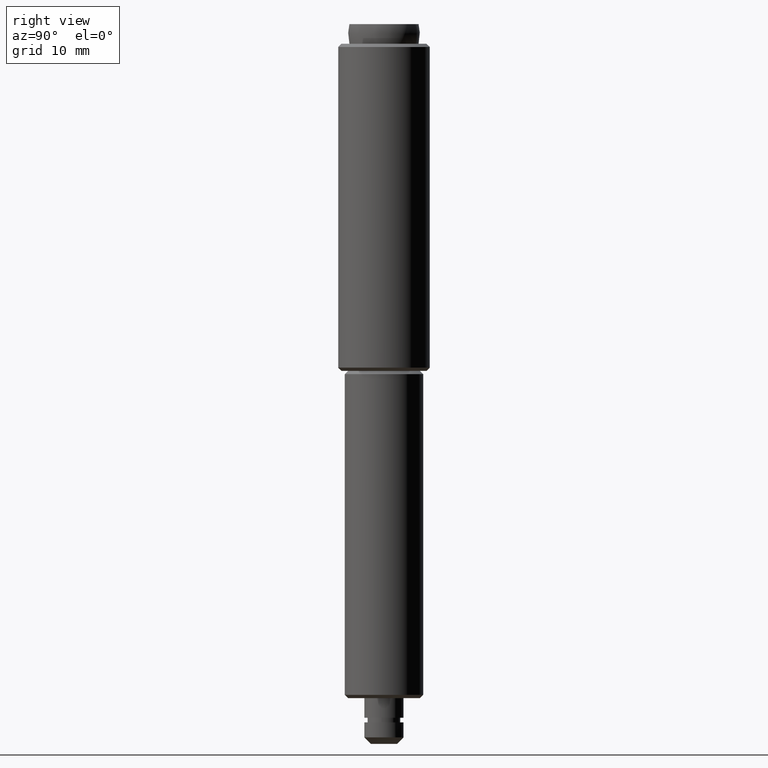
[diagram: clean part render]
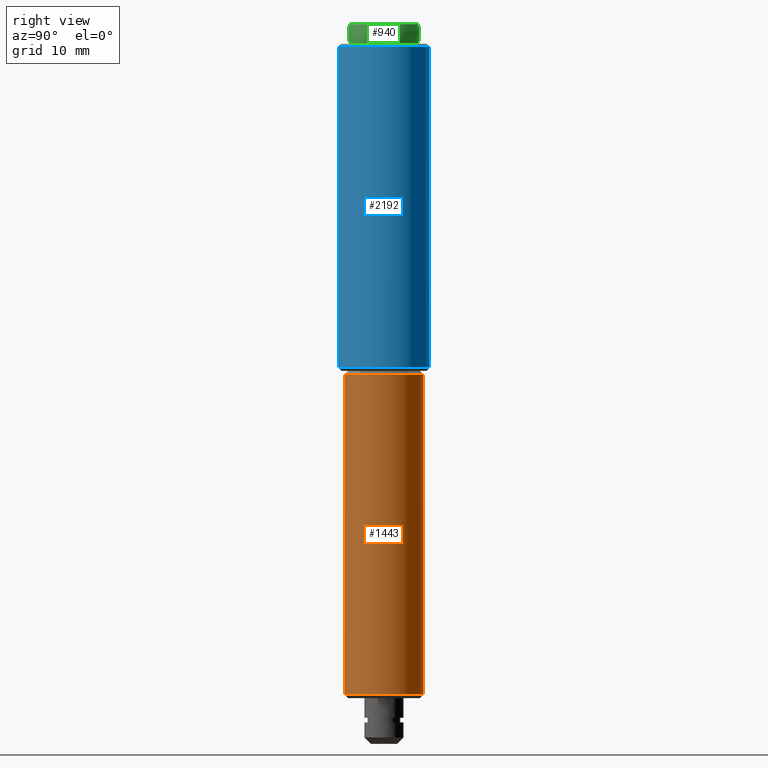
[diagram: same view with three faces highlighted in distinct colors, each labeled with its STEP entity id]
A machine part, right view with three faces highlighted in distinct colors.
Their STEP definitions:

[orange] entity #1443 — the highlighted face is a freeform B-spline surface patch.
#1016=CARTESIAN_POINT('',(0.744768012502784,5.953597282950256,56.500000000000000));
#1017=VERTEX_POINT('',#1016);
#1074=CARTESIAN_POINT('',(-0.052359213121789,-5.999771538383760,56.500000000000107));
#1075=VERTEX_POINT('',#1074);
#1081=CARTESIAN_POINT('',(6.0,0.0,56.500000000000000));
#1082=VERTEX_POINT('',#1081);
#1083=CARTESIAN_POINT('',(6.0,0.0,56.500000000000000));
#1084=CARTESIAN_POINT('',(6.0,-6.0,56.500000000000000));
#1085=CARTESIAN_POINT('',(0.0,-6.0,56.500000000000000));
#1086=CARTESIAN_POINT('',(-0.026180105187306,-6.0,56.500000000000000));
#1087=CARTESIAN_POINT('',(-0.052359213121789,-5.999771538383760,56.500000000000121));
#1095=(BOUNDED_CURVE()B_SPLINE_CURVE(2,(#1083,#1084,#1085,#1086,#1087),.UNSPECIFIED.,.F.,.U.)B_SPLINE_CURVE_WITH_KNOTS((3,2,3),(0.500000000000000,0.750000000000000,0.751539894350434),.UNSPECIFIED.)CURVE()GEOMETRIC_REPRESENTATION_ITEM()RATIONAL_B_SPLINE_CURVE((1.0,0.707106781186548,1.0,0.998195901548275,0.996414028064657))REPRESENTATION_ITEM(''));
#1096=EDGE_CURVE('',#1082,#1075,#1095,.T.);
#1098=CARTESIAN_POINT('',(0.744768012502784,5.953597282950256,56.500000000000000));
#1099=CARTESIAN_POINT('',(6.000000000000002,5.296191600858685,56.500000000000007));
#1100=CARTESIAN_POINT('',(6.0,0.0,56.500000000000000));
#1108=(BOUNDED_CURVE()B_SPLINE_CURVE(2,(#1098,#1099,#1100),.UNSPECIFIED.,.F.,.U.)B_SPLINE_CURVE_WITH_KNOTS((3,3),(0.271473928972050,0.500000000000000),.UNSPECIFIED.)CURVE()GEOMETRIC_REPRESENTATION_ITEM()RATIONAL_B_SPLINE_CURVE((0.954005430272101,0.732265053895328,1.0))REPRESENTATION_ITEM(''));
#1109=EDGE_CURVE('',#1017,#1082,#1108,.T.);
#1299=CARTESIAN_POINT('',(0.744763078572230,5.953597900158432,7.500007999999998));
#1300=VERTEX_POINT('',#1299);
#1316=CARTESIAN_POINT('',(6.0,0.0,7.500008000000000));
#1317=VERTEX_POINT('',#1316);
#1318=CARTESIAN_POINT('',(6.0,0.0,7.500008000000000));
#1319=CARTESIAN_POINT('',(6.000000000000001,5.296196024208348,7.500008000000002));
#1320=CARTESIAN_POINT('',(0.744763078572230,5.953597900158433,7.500007999999998));
#1328=(BOUNDED_CURVE()B_SPLINE_CURVE(2,(#1318,#1319,#1320),.UNSPECIFIED.,.F.,.U.)B_SPLINE_CURVE_WITH_KNOTS((3,3),(0.500000000000000,0.728526210790736),.UNSPECIFIED.)CURVE()GEOMETRIC_REPRESENTATION_ITEM()RATIONAL_B_SPLINE_CURVE((1.0,0.732264890153040,0.954005701497817))REPRESENTATION_ITEM(''));
#1329=EDGE_CURVE('',#1317,#1300,#1328,.T.);
#1331=CARTESIAN_POINT('',(-0.052359213232947,-5.999771538382909,7.500008000000000));
#1332=VERTEX_POINT('',#1331);
#1333=CARTESIAN_POINT('',(-0.052359213232947,-5.999771538382909,7.500008000000000));
#1334=CARTESIAN_POINT('',(-0.026180105166927,-6.0,7.500008000000001));
#1335=CARTESIAN_POINT('',(0.0,-6.0,7.500008000000000));
#1336=CARTESIAN_POINT('',(6.0,-6.0,7.500008000000002));
#1337=CARTESIAN_POINT('',(6.0,0.0,7.500008000000000));
#1345=(BOUNDED_CURVE()B_SPLINE_CURVE(2,(#1333,#1334,#1335,#1336,#1337),.UNSPECIFIED.,.F.,.U.)B_SPLINE_CURVE_WITH_KNOTS((3,2,3),(0.248460105650762,0.250000000000000,0.500000000000000),.UNSPECIFIED.)CURVE()GEOMETRIC_REPRESENTATION_ITEM()RATIONAL_B_SPLINE_CURVE((0.996414028067426,0.998195901549676,1.0,0.707106781186548,1.0))REPRESENTATION_ITEM(''));
#1346=EDGE_CURVE('',#1332,#1317,#1345,.T.);
#1409=CARTESIAN_POINT('',(0.744768012478976,5.953597282953231,57.724999800000006));
#1410=CARTESIAN_POINT('',(6.046396983014668,5.290387548799326,57.724999800000013));
#1411=CARTESIAN_POINT('',(5.999771538385026,-0.052359212990243,57.724999800000013));
#1412=CARTESIAN_POINT('',(5.947412325394783,-6.052130751375269,57.724999800000006));
#1413=CARTESIAN_POINT('',(-0.052359212990243,-5.999771538385026,57.724999800000013));
#1414=CARTESIAN_POINT('',(0.744768012478976,5.953597282953231,6.244383204999997));
#1415=CARTESIAN_POINT('',(6.046396983014668,5.290387548799326,6.244383204999998));
#1416=CARTESIAN_POINT('',(5.999771538385026,-0.052359212990243,6.244383204999998));
#1417=CARTESIAN_POINT('',(5.947412325394783,-6.052130751375269,6.244383204999998));
#1418=CARTESIAN_POINT('',(-0.052359212990243,-5.999771538385026,6.244383204999998));
#1426=(BOUNDED_SURFACE()B_SPLINE_SURFACE(2,1,((#1409,#1414),(#1410,#1415),(#1411,#1416),(#1412,#1417),(#1413,#1418)),.UNSPECIFIED.,.F.,.F.,.U.)B_SPLINE_SURFACE_WITH_KNOTS((3,2,3),(2,2),(0.0,9.145835457197935,19.086960954152211),(0.0,51.480616595000022),.UNSPECIFIED.)GEOMETRIC_REPRESENTATION_ITEM()RATIONAL_B_SPLINE_SURFACE(((0.956886118190660,0.956886118190660),(0.730538238691624,0.730538238691624),(1.0,1.0),(0.707106781186548,0.707106781186548),(1.0,1.0)))REPRESENTATION_ITEM('')SURFACE());
#1427=ORIENTED_EDGE('',*,*,#1109,.T.);
#1428=ORIENTED_EDGE('',*,*,#1096,.T.);
#1429=CARTESIAN_POINT('',(-0.052359213121789,-5.999771538383760,56.500000000000107));
#1430=CARTESIAN_POINT('',(-0.052359213232947,-5.999771538382909,7.500008000000000));
#1431=QUASI_UNIFORM_CURVE('',1,(#1429,#1430),.UNSPECIFIED.,.F.,.U.);
#1432=EDGE_CURVE('',#1075,#1332,#1431,.T.);
#1433=ORIENTED_EDGE('',*,*,#1432,.T.);
#1434=ORIENTED_EDGE('',*,*,#1346,.T.);
#1435=ORIENTED_EDGE('',*,*,#1329,.T.);
#1436=CARTESIAN_POINT('',(0.744768012502784,5.953597282950256,56.500000000000000));
#1437=CARTESIAN_POINT('',(0.744763078572230,5.953597900158432,7.500007999999998));
#1438=QUASI_UNIFORM_CURVE('',1,(#1436,#1437),.UNSPECIFIED.,.F.,.U.);
#1439=EDGE_CURVE('',#1017,#1300,#1438,.T.);
#1440=ORIENTED_EDGE('',*,*,#1439,.F.);
#1441=EDGE_LOOP('',(#1427,#1428,#1433,#1434,#1435,#1440));
#1442=FACE_OUTER_BOUND('',#1441,.T.);
#1443=ADVANCED_FACE('',(#1442),#1426,.T.);

[blue] entity #2192 — the highlighted face is a freeform B-spline surface patch.
#1765=CARTESIAN_POINT('',(0.868896014707477,6.945863496760172,106.500000000000000));
#1766=VERTEX_POINT('',#1765);
#1823=CARTESIAN_POINT('',(-0.061085748590651,-6.999733461448215,106.500000000000100));
#1824=VERTEX_POINT('',#1823);
#1830=CARTESIAN_POINT('',(7.0,0.0,106.500000000000000));
#1831=VERTEX_POINT('',#1830);
#1832=CARTESIAN_POINT('',(7.0,0.0,106.500000000000000));
#1833=CARTESIAN_POINT('',(6.999999999999999,-6.999999999999999,106.500000000000000));
#1834=CARTESIAN_POINT('',(0.0,-7.0,106.500000000000000));
#1835=CARTESIAN_POINT('',(-0.030543455949009,-7.0,106.500000000000040));
#1836=CARTESIAN_POINT('',(-0.061085748590651,-6.999733461448215,106.500000000000070));
#1844=(BOUNDED_CURVE()B_SPLINE_CURVE(2,(#1832,#1833,#1834,#1835,#1836),.UNSPECIFIED.,.F.,.U.)B_SPLINE_CURVE_WITH_KNOTS((3,2,3),(0.500000000000000,0.750000000000000,0.751539894345258),.UNSPECIFIED.)CURVE()GEOMETRIC_REPRESENTATION_ITEM()RATIONAL_B_SPLINE_CURVE((1.0,0.707106781186547,1.0,0.998195901554338,0.996414028076635))REPRESENTATION_ITEM(''));
#1845=EDGE_CURVE('',#1831,#1824,#1844,.T.);
#1847=CARTESIAN_POINT('',(0.868896014707477,6.945863496760173,106.499999999999970));
#1848=CARTESIAN_POINT('',(7.0,6.178890200785028,106.500000000000000));
#1849=CARTESIAN_POINT('',(7.0,0.0,106.500000000000000));
#1857=(BOUNDED_CURVE()B_SPLINE_CURVE(2,(#1847,#1848,#1849),.UNSPECIFIED.,.F.,.U.)B_SPLINE_CURVE_WITH_KNOTS((3,3),(0.271473928977921,0.500000000000000),.UNSPECIFIED.)CURVE()GEOMETRIC_REPRESENTATION_ITEM()RATIONAL_B_SPLINE_CURVE((0.954005430260708,0.732265053902206,1.0))REPRESENTATION_ITEM(''));
#1858=EDGE_CURVE('',#1766,#1831,#1857,.T.);
#2048=CARTESIAN_POINT('',(0.868896014626939,6.945863496770246,57.500000000000000));
#2049=VERTEX_POINT('',#2048);
#2065=CARTESIAN_POINT('',(7.0,0.0,57.500000000000000));
#2066=VERTEX_POINT('',#2065);
#2067=CARTESIAN_POINT('',(7.0,0.0,57.500000000000000));
#2068=CARTESIAN_POINT('',(7.0,6.178890200929411,57.500000000000007));
#2069=CARTESIAN_POINT('',(0.868896014626939,6.945863496770246,57.500000000000000));
#2077=(BOUNDED_CURVE()B_SPLINE_CURVE(2,(#2067,#2068,#2069),.UNSPECIFIED.,.F.,.U.)B_SPLINE_CURVE_WITH_KNOTS((3,3),(0.500000000000000,0.728526071025990),.UNSPECIFIED.)CURVE()GEOMETRIC_REPRESENTATION_ITEM()RATIONAL_B_SPLINE_CURVE((1.0,0.732265053897625,0.954005430268297))REPRESENTATION_ITEM(''));
#2078=EDGE_CURVE('',#2066,#2049,#2077,.T.);
#2080=CARTESIAN_POINT('',(-0.061085748670201,-6.999733461447613,57.500000000000000));
#2081=VERTEX_POINT('',#2080);
#2082=CARTESIAN_POINT('',(-0.061085748670201,-6.999733461447613,57.500000000000000));
#2083=CARTESIAN_POINT('',(-0.030543455926506,-7.000000000000001,57.500000000000007));
#2084=CARTESIAN_POINT('',(0.0,-7.0,57.500000000000000));
#2085=CARTESIAN_POINT('',(6.999999999999999,-6.999999999999999,57.500000000000000));
#2086=CARTESIAN_POINT('',(7.0,0.0,57.500000000000000));
#2094=(BOUNDED_CURVE()B_SPLINE_CURVE(2,(#2082,#2083,#2084,#2085,#2086),.UNSPECIFIED.,.F.,.U.)B_SPLINE_CURVE_WITH_KNOTS((3,2,3),(0.248460105655874,0.250000000000000,0.500000000000000),.UNSPECIFIED.)CURVE()GEOMETRIC_REPRESENTATION_ITEM()RATIONAL_B_SPLINE_CURVE((0.996414028079256,0.998195901555665,1.0,0.707106781186547,1.0))REPRESENTATION_ITEM(''));
#2095=EDGE_CURVE('',#2081,#2066,#2094,.T.);
#2158=CARTESIAN_POINT('',(0.868896014558805,6.945863496778769,107.725000000000080));
#2159=CARTESIAN_POINT('',(7.054129813517112,6.172118806932546,107.725000000000010));
#2160=CARTESIAN_POINT('',(6.999733461449196,-0.061085748488617,107.724999999999990));
#2161=CARTESIAN_POINT('',(6.938647712960579,-7.060819209937813,107.725000000000020));
#2162=CARTESIAN_POINT('',(-0.061085748488617,-6.999733461449196,107.724999999999990));
#2163=CARTESIAN_POINT('',(0.868896014558805,6.945863496778769,56.244374999999991));
#2164=CARTESIAN_POINT('',(7.054129813517112,6.172118806932546,56.244374999999998));
#2165=CARTESIAN_POINT('',(6.999733461449196,-0.061085748488617,56.244374999999991));
#2166=CARTESIAN_POINT('',(6.938647712960579,-7.060819209937813,56.244374999999991));
#2167=CARTESIAN_POINT('',(-0.061085748488617,-6.999733461449196,56.244374999999991));
#2175=(BOUNDED_SURFACE()B_SPLINE_SURFACE(2,1,((#2158,#2163),(#2159,#2164),(#2160,#2165),(#2161,#2166),(#2162,#2167)),.UNSPECIFIED.,.F.,.F.,.U.)B_SPLINE_SURFACE_WITH_KNOTS((3,2,3),(2,2),(0.0,10.670141366730920,22.268121113177578),(0.0,51.480625000000039),.UNSPECIFIED.)GEOMETRIC_REPRESENTATION_ITEM()RATIONAL_B_SPLINE_SURFACE(((0.956886118190660,0.956886118190660),(0.730538238691624,0.730538238691624),(1.0,1.0),(0.707106781186548,0.707106781186548),(1.0,1.0)))REPRESENTATION_ITEM('')SURFACE());
#2176=ORIENTED_EDGE('',*,*,#1858,.T.);
#2177=ORIENTED_EDGE('',*,*,#1845,.T.);
#2178=CARTESIAN_POINT('',(-0.061085748590651,-6.999733461448215,106.500000000000100));
#2179=CARTESIAN_POINT('',(-0.061085748670201,-6.999733461447613,57.500000000000000));
#2180=QUASI_UNIFORM_CURVE('',1,(#2178,#2179),.UNSPECIFIED.,.F.,.U.);
#2181=EDGE_CURVE('',#1824,#2081,#2180,.T.);
#2182=ORIENTED_EDGE('',*,*,#2181,.T.);
#2183=ORIENTED_EDGE('',*,*,#2095,.T.);
#2184=ORIENTED_EDGE('',*,*,#2078,.T.);
#2185=CARTESIAN_POINT('',(0.868896014707477,6.945863496760172,106.500000000000000));
#2186=CARTESIAN_POINT('',(0.868896014626939,6.945863496770246,57.500000000000000));
#2187=QUASI_UNIFORM_CURVE('',1,(#2185,#2186),.UNSPECIFIED.,.F.,.U.);
#2188=EDGE_CURVE('',#1766,#2049,#2187,.T.);
#2189=ORIENTED_EDGE('',*,*,#2188,.F.);
#2190=EDGE_LOOP('',(#2176,#2177,#2182,#2183,#2184,#2189));
#2191=FACE_OUTER_BOUND('',#2190,.T.);
#2192=ADVANCED_FACE('',(#2191),#2175,.T.);

[green] entity #940 — the highlighted face is a freeform B-spline surface patch.
#813=CARTESIAN_POINT('',(-5.291502622129210,0.0,107.0));
#814=VERTEX_POINT('',#813);
#815=CARTESIAN_POINT('',(5.291502622129210,0.0,107.0));
#816=VERTEX_POINT('',#815);
#817=CARTESIAN_POINT('',(-5.291502622129210,0.0,107.0));
#818=CARTESIAN_POINT('',(-5.291502622129209,5.291502622129209,107.000000000000010));
#819=CARTESIAN_POINT('',(0.0,5.291502622129210,107.0));
#820=CARTESIAN_POINT('',(5.291502622129209,5.291502622129209,107.000000000000010));
#821=CARTESIAN_POINT('',(5.291502622129210,0.0,107.0));
#829=(BOUNDED_CURVE()B_SPLINE_CURVE(2,(#817,#818,#819,#820,#821),.UNSPECIFIED.,.F.,.U.)B_SPLINE_CURVE_WITH_KNOTS((3,2,3),(0.0,0.250000000000000,0.500000000000000),.UNSPECIFIED.)CURVE()GEOMETRIC_REPRESENTATION_ITEM()RATIONAL_B_SPLINE_CURVE((1.0,0.707106781186547,1.0,0.707106781186547,1.0))REPRESENTATION_ITEM(''));
#830=EDGE_CURVE('',#814,#816,#829,.T.);
#832=CARTESIAN_POINT('',(5.291502622129210,0.0,107.0));
#833=CARTESIAN_POINT('',(5.291502622129209,-5.291502622129209,107.000000000000010));
#834=CARTESIAN_POINT('',(0.0,-5.291502622129210,107.0));
#835=CARTESIAN_POINT('',(-5.291502622129209,-5.291502622129209,107.000000000000010));
#836=CARTESIAN_POINT('',(-5.291502622129210,0.0,107.0));
#844=(BOUNDED_CURVE()B_SPLINE_CURVE(2,(#832,#833,#834,#835,#836),.UNSPECIFIED.,.F.,.U.)B_SPLINE_CURVE_WITH_KNOTS((3,2,3),(0.500000000000000,0.750000000000000,1.0),.UNSPECIFIED.)CURVE()GEOMETRIC_REPRESENTATION_ITEM()RATIONAL_B_SPLINE_CURVE((1.0,0.707106781186547,1.0,0.707106781186547,1.0))REPRESENTATION_ITEM(''));
#845=EDGE_CURVE('',#816,#814,#844,.T.);
#856=CARTESIAN_POINT('',(-3.164920355138504,3.164920355138512,111.696335134378120));
#857=CARTESIAN_POINT('',(-2.958400271391509,3.944533695188683,111.128874453313000));
#858=CARTESIAN_POINT('',(-1.308441104694653,5.233764418778624,110.190476266833340));
#859=CARTESIAN_POINT('',(1.308441104694659,5.233764418778624,110.190476266833340));
#860=CARTESIAN_POINT('',(2.958400271391517,3.944533695188683,111.128874453312970));
#861=CARTESIAN_POINT('',(3.164920355138517,3.164920355138512,111.696335134378090));
#862=CARTESIAN_POINT('',(-3.944533695188678,2.958400271391514,111.128874453313000));
#863=CARTESIAN_POINT('',(-3.925323314083964,3.925323314083971,110.190476266833340));
#864=CARTESIAN_POINT('',(-1.943729239503865,5.831187718511592,108.340836097114320));
#865=CARTESIAN_POINT('',(1.943729239503864,5.831187718511592,108.340836097114320));
#866=CARTESIAN_POINT('',(3.925323314083971,3.925323314083971,110.190476266833340));
#867=CARTESIAN_POINT('',(3.944533695188688,2.958400271391514,111.128874453312970));
#868=CARTESIAN_POINT('',(-5.233764418778620,1.308441104694657,110.190476266833340));
#869=CARTESIAN_POINT('',(-5.831187718511592,1.943729239503864,108.340836097114320));
#870=CARTESIAN_POINT('',(-3.778123765533617,3.778123765533606,103.0));
#871=CARTESIAN_POINT('',(3.778123765533597,3.778123765533606,103.0));
#872=CARTESIAN_POINT('',(5.831187718511592,1.943729239503864,108.340836097114320));
#873=CARTESIAN_POINT('',(5.233764418778628,1.308441104694657,110.190476266833340));
#874=CARTESIAN_POINT('',(-5.233764418778620,-1.308441104694656,110.190476266833390));
#875=CARTESIAN_POINT('',(-5.831187718511592,-1.943729239503865,108.340836097114320));
#876=CARTESIAN_POINT('',(-3.778123765533617,-3.778123765533610,103.0));
#877=CARTESIAN_POINT('',(3.778123765533597,-3.778123765533610,103.0));
#878=CARTESIAN_POINT('',(5.831187718511592,-1.943729239503865,108.340836097114320));
#879=CARTESIAN_POINT('',(5.233764418778628,-1.308441104694656,110.190476266833340));
#880=CARTESIAN_POINT('',(-3.944533695188678,-2.958400271391512,111.128874453313000));
#881=CARTESIAN_POINT('',(-3.925323314083964,-3.925323314083967,110.190476266833340));
#882=CARTESIAN_POINT('',(-1.943729239503865,-5.831187718511592,108.340836097114320));
#883=CARTESIAN_POINT('',(1.943729239503864,-5.831187718511592,108.340836097114320));
#884=CARTESIAN_POINT('',(3.925323314083971,-3.925323314083967,110.190476266833340));
#885=CARTESIAN_POINT('',(3.944533695188688,-2.958400271391512,111.128874453312970));
#886=CARTESIAN_POINT('',(-3.164920355138504,-3.164920355138510,111.696335134378120));
#887=CARTESIAN_POINT('',(-2.958400271391509,-3.944533695188683,111.128874453313000));
#888=CARTESIAN_POINT('',(-1.308441104694653,-5.233764418778624,110.190476266833340));
#889=CARTESIAN_POINT('',(1.308441104694659,-5.233764418778624,110.190476266833340));
#890=CARTESIAN_POINT('',(2.958400271391517,-3.944533695188683,111.128874453313000));
#891=CARTESIAN_POINT('',(3.164920355138517,-3.164920355138510,111.696335134378090));
#899=(BOUNDED_SURFACE()B_SPLINE_SURFACE(2,2,((#856,#862,#868,#874,#880,#886),(#857,#863,#869,#875,#881,#887),(#858,#864,#870,#876,#882,#888),(#859,#865,#871,#877,#883,#889),(#860,#866,#872,#878,#884,#890),(#861,#867,#873,#879,#885,#891)),.UNSPECIFIED.,.F.,.F.,.U.)B_SPLINE_SURFACE_WITH_KNOTS((3,1,1,1,3),(3,1,1,1,3),(0.0,6.113777991878097,12.227555983756190,18.341333975634289,24.455111967512391),(0.0,6.113777991878104,12.227555983756210,18.341333975634310,24.455111967512419),.UNSPECIFIED.)GEOMETRIC_REPRESENTATION_ITEM()RATIONAL_B_SPLINE_SURFACE(((4.775000115752690,3.831250086814517,2.887500057876345,2.887500057876345,3.831250086814517,4.775000115752690),(3.831250086814517,2.887500057876345,1.943750028938172,1.943750028938172,2.887500057876345,3.831250086814517),(2.887500057876345,1.943750028938172,1.0,1.0,1.943750028938172,2.887500057876345),(2.887500057876345,1.943750028938172,1.0,1.0,1.943750028938172,2.887500057876345),(3.831250086814517,2.887500057876345,1.943750028938172,1.943750028938172,2.887500057876345,3.831250086814517),(4.775000115752690,3.831250086814517,2.887500057876345,2.887500057876345,3.831250086814517,4.775000115752690)))REPRESENTATION_ITEM('')SURFACE());
#900=ORIENTED_EDGE('',*,*,#830,.F.);
#901=ORIENTED_EDGE('',*,*,#845,.F.);
#902=EDGE_LOOP('',(#900,#901));
#903=FACE_OUTER_BOUND('',#902,.T.);
#904=CARTESIAN_POINT('',(-5.291502599401650,0.0,110.000000080175000));
#905=VERTEX_POINT('',#904);
#906=CARTESIAN_POINT('',(5.291502599401650,0.0,110.000000080175000));
#907=VERTEX_POINT('',#906);
#908=CARTESIAN_POINT('',(-5.291502599401650,0.0,110.000000080175000));
#909=CARTESIAN_POINT('',(-5.291502599401650,5.291502599401650,110.000000080175000));
#910=CARTESIAN_POINT('',(0.0,5.291502599401650,110.000000080175000));
#911=CARTESIAN_POINT('',(5.291502599401650,5.291502599401650,110.000000080175000));
#912=CARTESIAN_POINT('',(5.291502599401650,0.0,110.000000080175000));
#920=(BOUNDED_CURVE()B_SPLINE_CURVE(2,(#908,#909,#910,#911,#912),.UNSPECIFIED.,.F.,.U.)B_SPLINE_CURVE_WITH_KNOTS((3,2,3),(0.0,0.250000000000000,0.500000000000000),.UNSPECIFIED.)CURVE()GEOMETRIC_REPRESENTATION_ITEM()RATIONAL_B_SPLINE_CURVE((1.0,0.707106781186548,1.0,0.707106781186548,1.0))REPRESENTATION_ITEM(''));
#921=EDGE_CURVE('',#905,#907,#920,.T.);
#922=ORIENTED_EDGE('',*,*,#921,.T.);
#923=CARTESIAN_POINT('',(5.291502599401650,0.0,110.000000080175000));
#924=CARTESIAN_POINT('',(5.291502599401650,-5.291502599401650,110.000000080175000));
#925=CARTESIAN_POINT('',(0.0,-5.291502599401650,110.000000080175000));
#926=CARTESIAN_POINT('',(-5.291502599401650,-5.291502599401650,110.000000080175000));
#927=CARTESIAN_POINT('',(-5.291502599401650,0.0,110.000000080175000));
#935=(BOUNDED_CURVE()B_SPLINE_CURVE(2,(#923,#924,#925,#926,#927),.UNSPECIFIED.,.F.,.U.)B_SPLINE_CURVE_WITH_KNOTS((3,2,3),(0.500000000000000,0.750000000000000,1.0),.UNSPECIFIED.)CURVE()GEOMETRIC_REPRESENTATION_ITEM()RATIONAL_B_SPLINE_CURVE((1.0,0.707106781186548,1.0,0.707106781186548,1.0))REPRESENTATION_ITEM(''));
#936=EDGE_CURVE('',#907,#905,#935,.T.);
#937=ORIENTED_EDGE('',*,*,#936,.T.);
#938=EDGE_LOOP('',(#922,#937));
#939=FACE_BOUND('',#938,.T.);
#940=ADVANCED_FACE('',(#903,#939),#899,.T.);